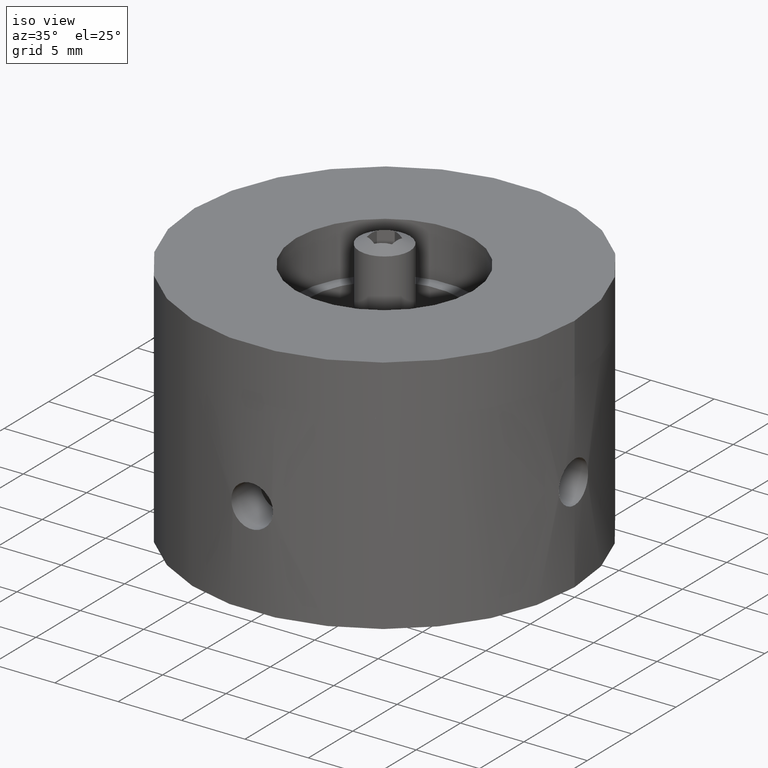
[diagram: clean part render]
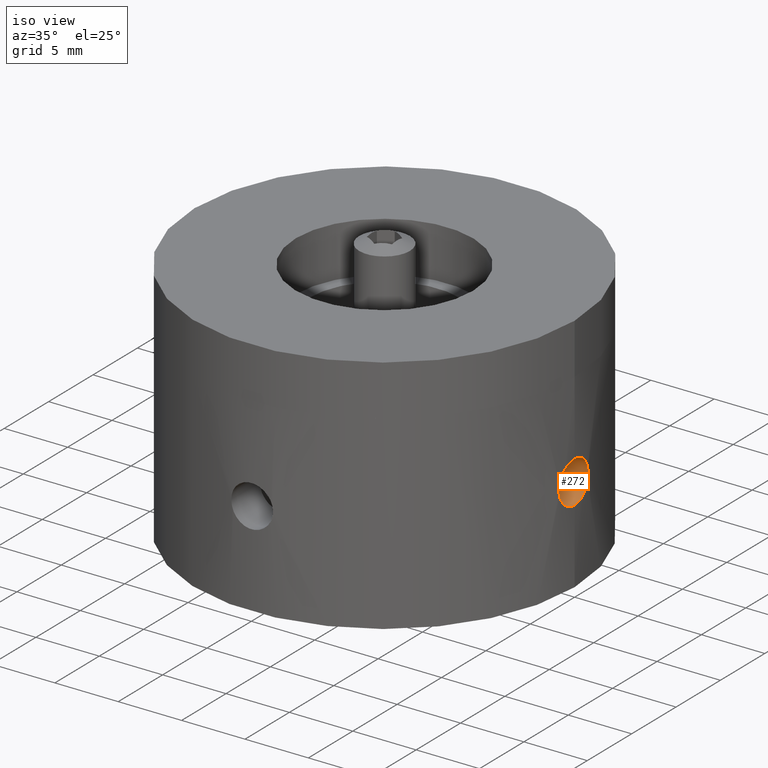
[diagram: same view with one face highlighted and labeled with its STEP entity id]
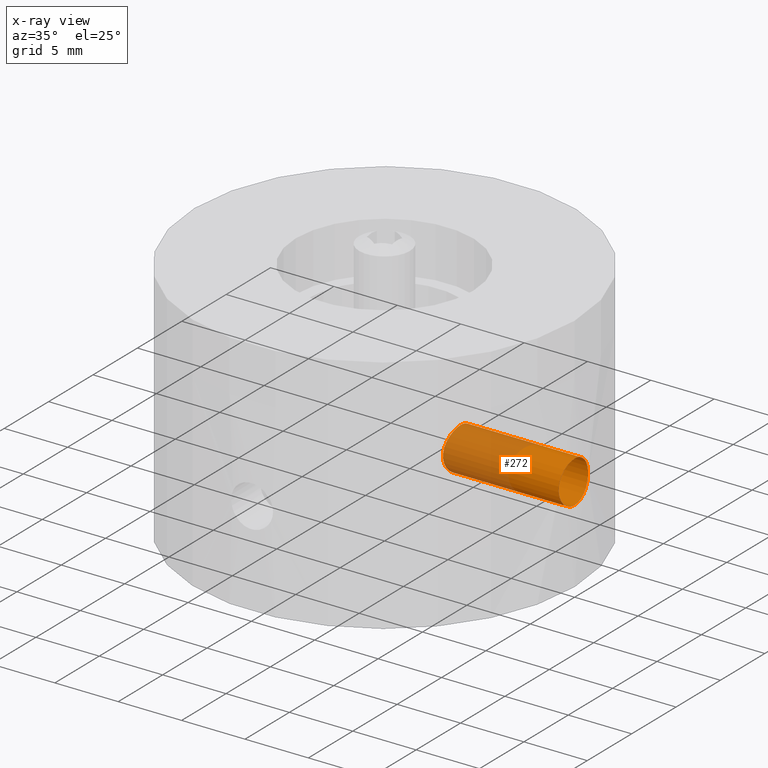
[diagram: x-ray of the same camera — body ghosted, the highlighted face saturated]
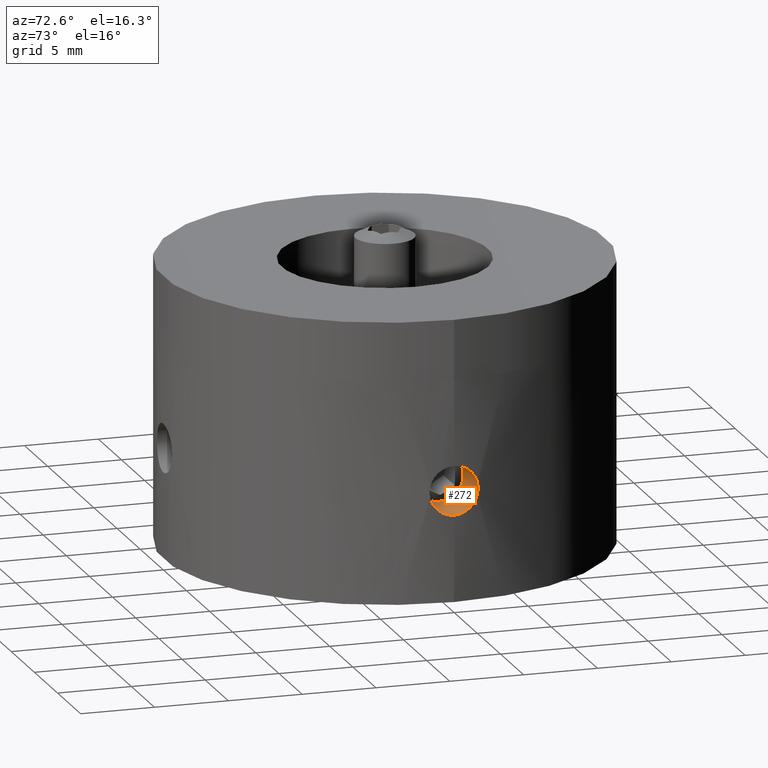
[diagram: same view with one face highlighted and labeled with its STEP entity id]
A machine part, iso view. The second image highlights one B-rep face of the part: STEP entity #272.
The next image is the same camera in x-ray: the body ghosted, the highlighted face saturated — about 49% of this face is hidden behind the body in this view.
A second angle (auxiliary view) of the same face is appended — the face is thin or edge-on in the first view.
In plain terms, the highlighted cylindrical surface (bore or boss wall) has radius 1.65 mm, axis along (-1, 0, -0).
Its self-contained STEP definition (entity closure, byte-faithful):
#272 = ADVANCED_FACE( '', ( #310, #311 ), #312, .F. );
#310 = FACE_OUTER_BOUND( '', #371, .T. );
#311 = FACE_OUTER_BOUND( '', #372, .T. );
#312 = CYLINDRICAL_SURFACE( '', #373, 1.65000000000000 );
#371 = EDGE_LOOP( '', ( #435 ) );
#372 = EDGE_LOOP( '', ( #436 ) );
#373 = AXIS2_PLACEMENT_3D( '', #437, #438, #439 );
#435 = ORIENTED_EDGE( '', *, *, #552, .T. );
#436 = ORIENTED_EDGE( '', *, *, #556, .F. );
#437 = CARTESIAN_POINT( '', ( 12.0000000000000, -7.34763812293426E-016, -7.50000000000000 ) );
#438 = DIRECTION( '', ( -1.00000000000000, 6.12303176911189E-017, -0.000000000000000 ) );
#439 = DIRECTION( '', ( 6.12303176911189E-017, 1.00000000000000, 0.000000000000000 ) );
#552 = EDGE_CURVE( '', #587, #587, #588, .T. );
#556 = EDGE_CURVE( '', #595, #595, #596, .T. );
#587 = VERTEX_POINT( '', #700 );
#588 = B_SPLINE_CURVE_WITH_KNOTS( '', 3, ( #701, #702, #703, #704, #705, #706, #707, #708, #709, #710, #711, #712, #713, #714, #715, #716, #717, #718, #719, #720, #721, #722, #723, #724, #725, #726, #727, #728, #729, #730, #731, #732, #733, #734, #735, #736, #737, #738, #739, #740, #741, #742, #743, #744, #745, #746, #747, #748, #749, #750, #751, #752, #753, #754 ), .UNSPECIFIED., .T., .F., ( 2, 2, 2, 2, 2, 2, 2, 2, 2, 2, 2, 2, 2, 2, 2, 2, 2, 2, 2, 2, 2, 2, 2, 2, 2, 2, 2, 2, 2 ), ( -0.000645243265853658, 0.000000000000000, 0.000322621632926825, 0.000645243265853650, 0.000967864898780474, 0.00129048653170730, 0.00193572979756095, 0.00258097306341461, 0.00290359469634143, 0.00322621632926826, 0.00354883796219508, 0.00387145959512191, 0.00419408122804873, 0.00451670286097556, 0.00483932449390238, 0.00516194612682921, 0.00580718939268286, 0.00645243265853651, 0.00677505429146333, 0.00709767592439016, 0.00742029755731698, 0.00774291919024381, 0.00806554082317064, 0.00838816245609746, 0.00871078408902429, 0.00903340572195112, 0.00967864898780478, 0.0103238922536584, 0.0106465138865853 ), .UNSPECIFIED. );
#595 = VERTEX_POINT( '', #814 );
#596 = B_SPLINE_CURVE_WITH_KNOTS( '', 3, ( #815, #816, #817, #818, #819, #820, #821, #822, #823, #824, #825, #826, #827, #828, #829, #830, #831, #832, #833, #834, #835, #836, #837, #838, #839, #840, #841, #842, #843, #844, #845, #846, #847, #848, #849, #850, #851, #852, #853, #854, #855, #856, #857, #858, #859, #860, #861, #862, #863, #864, #865, #866, #867, #868 ), .UNSPECIFIED., .T., .F., ( 2, 2, 2, 2, 2, 2, 2, 2, 2, 2, 2, 2, 2, 2, 2, 2, 2, 2, 2, 2, 2, 2, 2, 2, 2, 2, 2, 2, 2 ), ( -0.000323939765471948, 0.000000000000000, 0.000323939765471947, 0.000647879530943893, 0.000971819296415840, 0.00129575906188779, 0.00194363859283168, 0.00259151812377557, 0.00291545788924752, 0.00323939765471947, 0.00388727718566336, 0.00421121695113531, 0.00453515671660725, 0.00485909648207920, 0.00518303624755114, 0.00583091577849504, 0.00615485554396698, 0.00647879530943893, 0.00680273507491088, 0.00712667484038282, 0.00745061460585477, 0.00777455437132671, 0.00809849413679866, 0.00842243390227061, 0.00907031343321450, 0.00971819296415840, 0.0100421327296303, 0.0103660724951023, 0.0106900122605742 ), .UNSPECIFIED. );
#700 = CARTESIAN_POINT( '', ( 15.0000000000000, 0.000000000000000, -9.15000000000000 ) );
#701 = CARTESIAN_POINT( '', ( 15.0000000000000, -0.218190539910072, -9.15000000000000 ) );
#702 = CARTESIAN_POINT( '', ( 15.0000000000000, 0.109095269955035, -9.15000000000000 ) );
#703 = CARTESIAN_POINT( '', ( 14.9988108307869, 0.216351070805934, -9.13928685408049 ) );
#704 = CARTESIAN_POINT( '', ( 14.9942827548178, 0.427339200333823, -9.09732601044935 ) );
#705 = CARTESIAN_POINT( '', ( 14.9908902155958, 0.532171074206062, -9.06556304275211 ) );
#706 = CARTESIAN_POINT( '', ( 14.9824646442938, 0.731948557449083, -8.98271541514246 ) );
#707 = CARTESIAN_POINT( '', ( 14.9774715807358, 0.826687329845736, -8.93202966134249 ) );
#708 = CARTESIAN_POINT( '', ( 14.9664980500304, 1.00598360399746, -8.81229489093741 ) );
#709 = CARTESIAN_POINT( '', ( 14.9604795048451, 1.09081157437854, -8.74265681435435 ) );
#710 = CARTESIAN_POINT( '', ( 14.9426807056185, 1.31892416487419, -8.51449615255498 ) );
#711 = CARTESIAN_POINT( '', ( 14.9307726738988, 1.44183008660938, -8.33054503073168 ) );
#712 = CARTESIAN_POINT( '', ( 14.9139573952106, 1.60646240296466, -7.93354076461865 ) );
#713 = CARTESIAN_POINT( '', ( 14.9089869467024, 1.64988127974827, -7.71629880954802 ) );
#714 = CARTESIAN_POINT( '', ( 14.9089672796980, 1.65005898574763, -7.39321190786227 ) );
#715 = CARTESIAN_POINT( '', ( 14.9101657326194, 1.63933115532680, -7.28380852146366 ) );
#716 = CARTESIAN_POINT( '', ( 14.9147368394565, 1.59720813320021, -7.07213136191593 ) );
#717 = CARTESIAN_POINT( '', ( 14.9180842777015, 1.56604216701397, -6.96923906900321 ) );
#718 = CARTESIAN_POINT( '', ( 14.9265315920238, 1.48336820034195, -6.76937422920301 ) );
#719 = CARTESIAN_POINT( '', ( 14.9316345061084, 1.43174144114355, -6.67285836054697 ) );
#720 = CARTESIAN_POINT( '', ( 14.9425996225871, 1.31236774471024, -6.49414824718102 ) );
#721 = CARTESIAN_POINT( '', ( 14.9485102018890, 1.24418811119696, -6.41080017031819 ) );
#722 = CARTESIAN_POINT( '', ( 14.9605261947848, 1.09023726187560, -6.25672085280869 ) );
#723 = CARTESIAN_POINT( '', ( 14.9664285245476, 1.00698565173820, -6.18850324762688 ) );
#724 = CARTESIAN_POINT( '', ( 14.9773746407483, 0.828403134872342, -6.06898914035374 ) );
#725 = CARTESIAN_POINT( '', ( 14.9824653892583, 0.731933686753380, -6.01727706293587 ) );
#726 = CARTESIAN_POINT( '', ( 14.9908909587972, 0.532150658723238, -5.93442984624741 ) );
#727 = CARTESIAN_POINT( '', ( 14.9942285990287, 0.429305983078390, -5.90318020198231 ) );
#728 = CARTESIAN_POINT( '', ( 14.9987927111260, 0.217743233445327, -5.86087676523790 ) );
#729 = CARTESIAN_POINT( '', ( 14.9999955988213, 0.108328733725160, -5.85004001071809 ) );
#730 = CARTESIAN_POINT( '', ( 15.0000087650077, -0.214824036197444, -5.84992031810628 ) );
#731 = CARTESIAN_POINT( '', ( 14.9950938665894, -0.432067155030354, -5.89313326841451 ) );
#732 = CARTESIAN_POINT( '', ( 14.9783761592524, -0.829318832670091, -6.05745606884539 ) );
#733 = CARTESIAN_POINT( '', ( 14.9665104233928, -1.01335470693760, -6.18019471506974 ) );
#734 = CARTESIAN_POINT( '', ( 14.9487097795868, -1.24173524939341, -6.40813828326820 ) );
#735 = CARTESIAN_POINT( '', ( 14.9426811777155, -1.31145005764329, -6.49291767277350 ) );
#736 = CARTESIAN_POINT( '', ( 14.9316766060383, -1.43131260220685, -6.67207470006748 ) );
#737 = CARTESIAN_POINT( '', ( 14.9266608345398, -1.48207186860809, -6.76675178247356 ) );
#738 = CARTESIAN_POINT( '', ( 14.9181853516660, -1.56508354615387, -6.96642388941819 ) );
#739 = CARTESIAN_POINT( '', ( 14.9147649518783, -1.59694574984552, -7.07124394578365 ) );
#740 = CARTESIAN_POINT( '', ( 14.9101920762622, -1.63909168343198, -7.28217912110875 ) );
#741 = CARTESIAN_POINT( '', ( 14.9089851743659, -1.64989729409595, -7.38940230997264 ) );
#742 = CARTESIAN_POINT( '', ( 14.9089626008201, -1.65010126291596, -7.60751163763828 ) );
#743 = CARTESIAN_POINT( '', ( 14.9101490417497, -1.63948067598396, -7.71487687582187 ) );
#744 = CARTESIAN_POINT( '', ( 14.9146828253202, -1.59771009704881, -7.92590069790513 ) );
#745 = CARTESIAN_POINT( '', ( 14.9180831097084, -1.56605341677084, -8.03073076395244 ) );
#746 = CARTESIAN_POINT( '', ( 14.9265314070547, -1.48337019201379, -8.23062392612761 ) );
#747 = CARTESIAN_POINT( '', ( 14.9315367920818, -1.43276416930908, -8.32541256802209 ) );
#748 = CARTESIAN_POINT( '', ( 14.9425269568568, -1.31319925439980, -8.50480186631424 ) );
#749 = CARTESIAN_POINT( '', ( 14.9485512646117, -1.24363375243918, -8.58969835546805 ) );
#750 = CARTESIAN_POINT( '', ( 14.9663513217224, -1.01566106477099, -8.81802969085342 ) );
#751 = CARTESIAN_POINT( '', ( 14.9782346172820, -0.831825003506157, -8.94109229004452 ) );
#752 = CARTESIAN_POINT( '', ( 14.9950075624997, -0.434963547181930, -9.10607799857500 ) );
#753 = CARTESIAN_POINT( '', ( 15.0000000000000, -0.218190539910072, -9.15000000000000 ) );
#754 = CARTESIAN_POINT( '', ( 15.0000000000000, 0.109095269955035, -9.15000000000000 ) );
#814 = CARTESIAN_POINT( '', ( 6.00000000000000, 0.000000000000000, -9.15000000000000 ) );
#815 = CARTESIAN_POINT( '', ( 6.00000000000000, -0.109573475891819, -9.15000000000000 ) );
#816 = CARTESIAN_POINT( '', ( 6.00000000000000, 0.109573475891819, -9.15000000000000 ) );
#817 = CARTESIAN_POINT( '', ( 5.99700297822039, 0.217213428494543, -9.13919439918440 ) );
#818 = CARTESIAN_POINT( '', ( 5.98559468047398, 0.428815479412887, -9.09695248409330 ) );
#819 = CARTESIAN_POINT( '', ( 5.97704097585373, 0.533902399752622, -9.06496947921527 ) );
#820 = CARTESIAN_POINT( '', ( 5.95584342596189, 0.733484618054554, -8.98195194200563 ) );
#821 = CARTESIAN_POINT( '', ( 5.94327525367664, 0.828056611830157, -8.93122789888852 ) );
#822 = CARTESIAN_POINT( '', ( 5.91558229028968, 1.00701770598730, -8.81149014132039 ) );
#823 = CARTESIAN_POINT( '', ( 5.90042252608941, 1.09131436953481, -8.74217307017985 ) );
#824 = CARTESIAN_POINT( '', ( 5.85540215540988, 1.31836176998862, -8.51502029593760 ) );
#825 = CARTESIAN_POINT( '', ( 5.82500009800697, 1.44105579873491, -8.33184993454713 ) );
#826 = CARTESIAN_POINT( '', ( 5.78170573370567, 1.60597221821667, -7.93528078637796 ) );
#827 = CARTESIAN_POINT( '', ( 5.76870574473718, 1.64985879762447, -7.71745998505678 ) );
#828 = CARTESIAN_POINT( '', ( 5.76864531297230, 1.65007007684170, -7.39288106697904 ) );
#829 = CARTESIAN_POINT( '', ( 5.77177681843597, 1.63923020505683, -7.28294374193490 ) );
#830 = CARTESIAN_POINT( '', ( 5.78363409732728, 1.59689070860808, -7.07089727442365 ) );
#831 = CARTESIAN_POINT( '', ( 5.79230806578152, 1.56557208108265, -6.96778219665374 ) );
#832 = CARTESIAN_POINT( '', ( 5.82507084024762, 1.44081379297512, -6.66714794889544 ) );
#833 = CARTESIAN_POINT( '', ( 5.85521444765090, 1.31933834669987, -6.48589910813254 ) );
#834 = CARTESIAN_POINT( '', ( 5.90058193199823, 1.09049545576276, -6.25703651141693 ) );
#835 = CARTESIAN_POINT( '', ( 5.91544775006866, 1.00777670580793, -6.18912223604538 ) );
#836 = CARTESIAN_POINT( '', ( 5.94306809523529, 0.829504423109222, -6.06963752396744 ) );
#837 = CARTESIAN_POINT( '', ( 5.95591470696913, 0.732865789745175, -6.01776541831305 ) );
#838 = CARTESIAN_POINT( '', ( 5.97703976571793, 0.533861312979720, -5.93503874826529 ) );
#839 = CARTESIAN_POINT( '', ( 5.98544988379532, 0.430974265958242, -5.90358756428963 ) );
#840 = CARTESIAN_POINT( '', ( 5.99697660631211, 0.218221705357194, -5.86089940207443 ) );
#841 = CARTESIAN_POINT( '', ( 5.99998728422961, 0.108702393680486, -5.85004623916894 ) );
#842 = CARTESIAN_POINT( '', ( 6.00002530758481, -0.215292344446526, -5.84990797241113 ) );
#843 = CARTESIAN_POINT( '', ( 5.98766598791113, -0.433414116946000, -5.89344882682602 ) );
#844 = CARTESIAN_POINT( '', ( 5.95605523238036, -0.731713067891662, -6.01720378895974 ) );
#845 = CARTESIAN_POINT( '', ( 5.94324142084535, -0.828293445142348, -6.06891334666039 ) );
#846 = CARTESIAN_POINT( '', ( 5.91555963669346, -1.00714586949496, -6.18861285724169 ) );
#847 = CARTESIAN_POINT( '', ( 5.90069222742840, -1.08988816912181, -6.25652711468076 ) );
#848 = CARTESIAN_POINT( '', ( 5.87052286916909, -1.24216996686781, -6.40862709804235 ) );
#849 = CARTESIAN_POINT( '', ( 5.85526641142528, -1.31133656582106, -6.49284086854879 ) );
#850 = CARTESIAN_POINT( '', ( 5.82728840622348, -1.43054471035263, -6.67083479534713 ) );
#851 = CARTESIAN_POINT( '', ( 5.81439128582988, -1.48146042736154, -6.76540642237855 ) );
#852 = CARTESIAN_POINT( '', ( 5.79242769886707, -1.56513653588756, -6.96642681275124 ) );
#853 = CARTESIAN_POINT( '', ( 5.78371427273985, -1.59660056448243, -7.06990843584165 ) );
#854 = CARTESIAN_POINT( '', ( 5.77184863324941, -1.63897757948583, -7.28122017915596 ) );
#855 = CARTESIAN_POINT( '', ( 5.76867835601602, -1.64995455302645, -7.39050797130387 ) );
#856 = CARTESIAN_POINT( '', ( 5.76865243962299, -1.65004516091289, -7.60811798346547 ) );
#857 = CARTESIAN_POINT( '', ( 5.77171918853873, -1.63943211100153, -7.71557250704337 ) );
#858 = CARTESIAN_POINT( '', ( 5.78353829860717, -1.59723660942055, -7.92783684495686 ) );
#859 = CARTESIAN_POINT( '', ( 5.79240670617823, -1.56519857959077, -8.03315026780455 ) );
#860 = CARTESIAN_POINT( '', ( 5.82493112205060, -1.44134159611536, -8.33151524926473 ) );
#861 = CARTESIAN_POINT( '', ( 5.85532728337309, -1.31868049150572, -8.51458796604873 ) );
#862 = CARTESIAN_POINT( '', ( 5.91533107496523, -1.01618605955889, -8.81744938114785 ) );
#863 = CARTESIAN_POINT( '', ( 5.94520049479435, -0.833396076899704, -8.94025053884456 ) );
#864 = CARTESIAN_POINT( '', ( 5.97691493640555, -0.535235769587517, -9.06448564386591 ) );
#865 = CARTESIAN_POINT( '', ( 5.98552142401946, -0.429944981496119, -9.09667954314473 ) );
#866 = CARTESIAN_POINT( '', ( 5.99700145220574, -0.217469507637247, -9.13919042940672 ) );
#867 = CARTESIAN_POINT( '', ( 6.00000000000000, -0.109573475891819, -9.15000000000000 ) );
#868 = CARTESIAN_POINT( '', ( 6.00000000000000, 0.109573475891819, -9.15000000000000 ) );